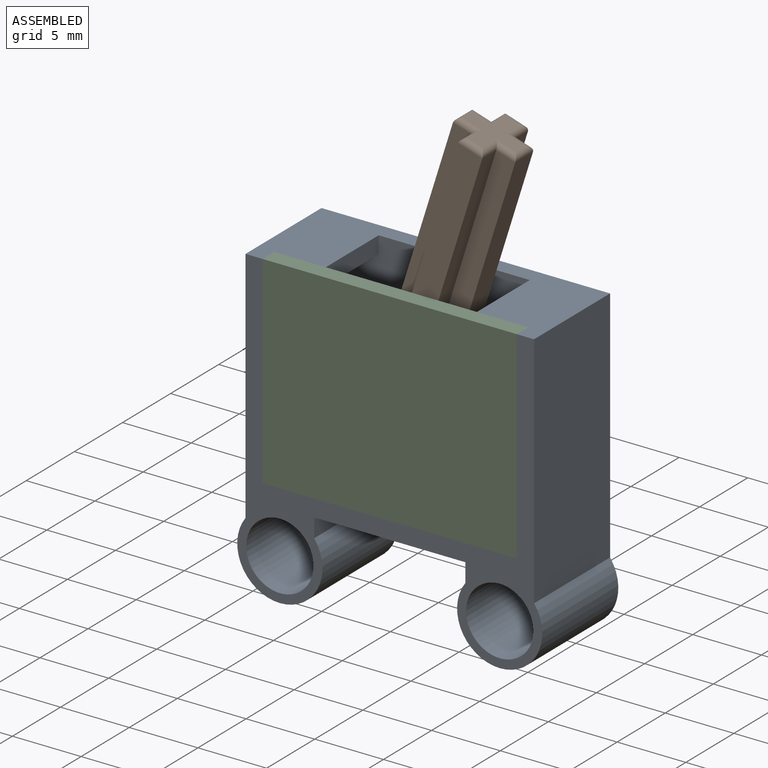
[diagram: assembled view]
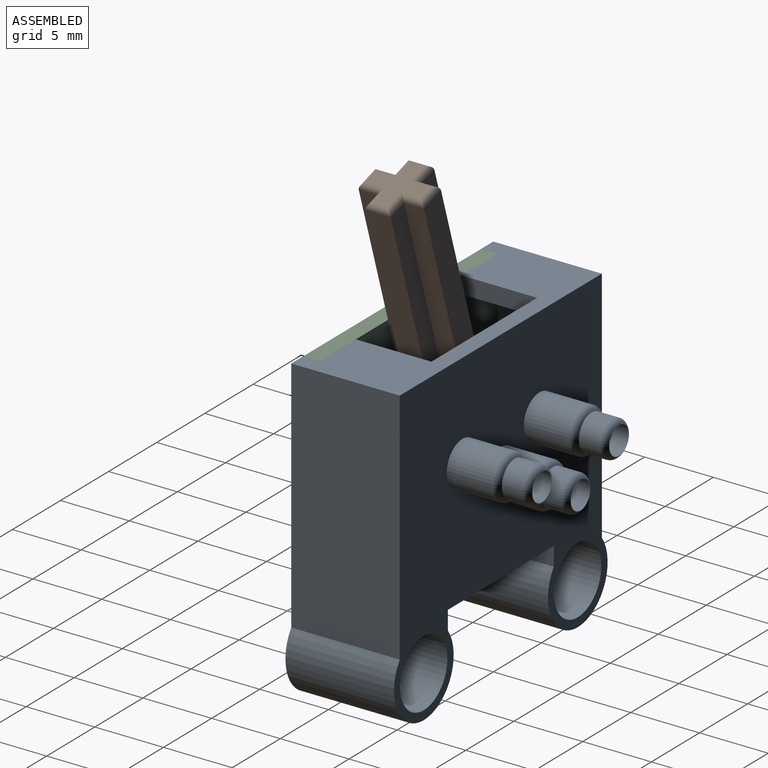
[diagram: assembled view, second angle]
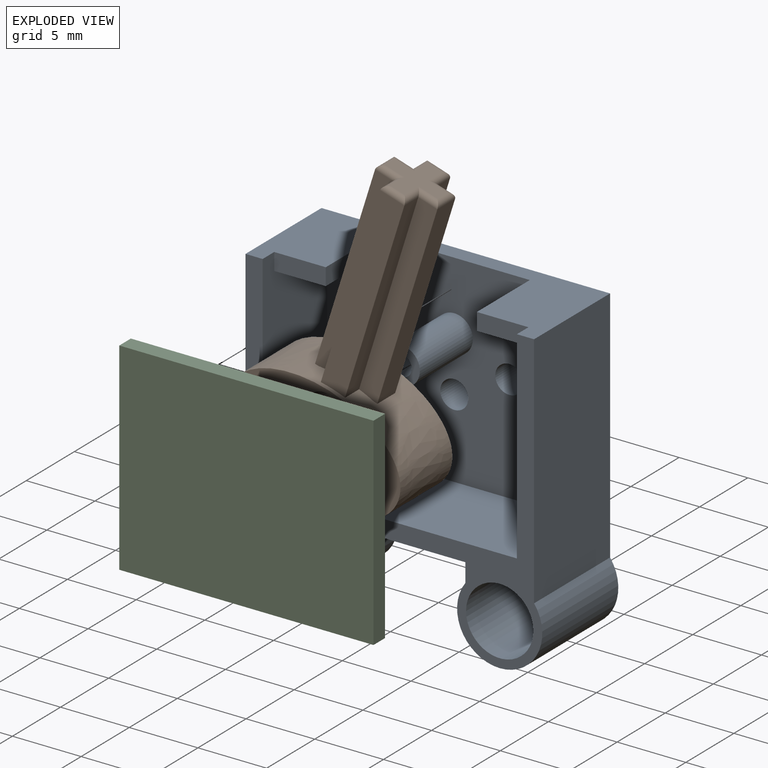
[diagram: exploded view]
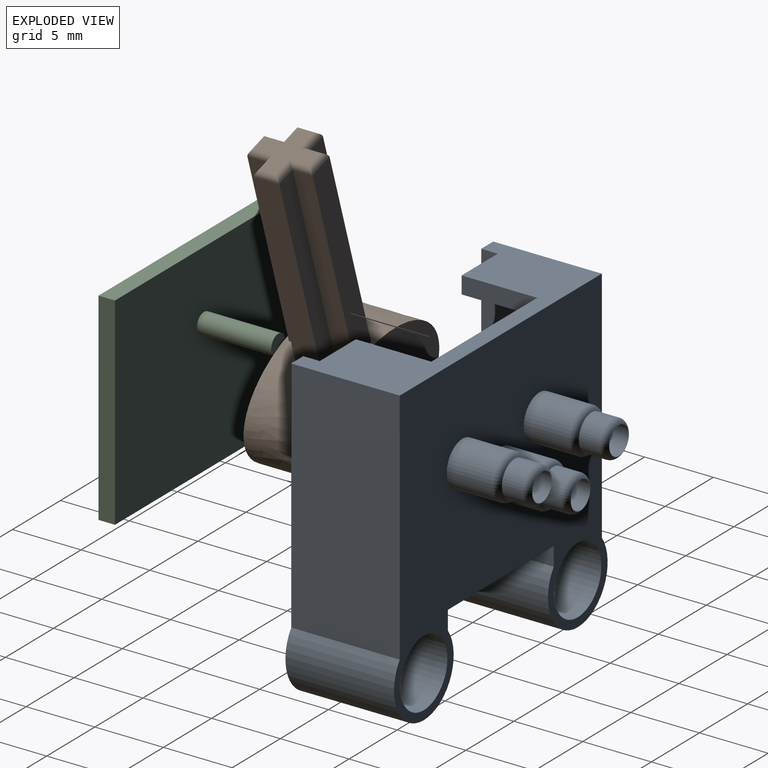
[diagram: exploded view, second angle]
ASSEMBLY  parts=3 mates=2
PART A: 41 faces, bbox 22.2x13.7x22.3 mm
  f0: plane 18.5x14.75mm, normal (0,-1,0), area 248.1mm2, adj f2,f8,f9,f13,f15,f16,f17,f19
  f1: plane 17.37x7.9mm, normal (1,0,0), area 137.2mm2, adj f2,f12,f14,f18
  f2: plane 21x7.9mm, normal (0,0,1), area 83.2mm2, adj f0,f1,f3,f14,f15,f16,f18,f20
  f3: plane 17.37x7.9mm, normal (-1,0,0), area 137.2mm2, adj f2,f4,f14,f18
  f4: cylinder r=3.1mm len=7.9mm, axis (0,-1,0), area 107.9mm2, adj f3,f5,f14,f18
  f5: plane 7.9x1.37mm, normal (1,0,0), area 10.8mm2, adj f4,f6,f14,f18
  f6: plane 11x7.9mm, normal (0,0,-1), area 86.9mm2, adj f5,f7,f14,f18
  f7: plane 7.9x1.37mm, normal (-1,0,0), area 10.8mm2, adj f6,f12,f14,f18
  f8: cylinder r=1.02mm len=7mm, axis (0,-1,0), area 44.6mm2, adj f0,f39
  f9: cylinder r=1.02mm len=7mm, axis (0,-1,0), area 44.6mm2, adj f0,f38
  f10: cylinder r=2.45mm len=7.9mm, axis (0,-1,0), area 121.6mm2, adj f14,f18
  f11: cylinder r=2.45mm len=7.9mm, axis (0,-1,0), area 121.6mm2, adj f14,f18
  f12: cylinder r=3.1mm len=7.9mm, axis (0,-1,0), area 107.9mm2, adj f1,f7,f14,f18
  f13: cylinder r=1.02mm len=7mm, axis (0,-1,0), area 44.6mm2, adj f0,f40
  f14: plane 22.3x22.2mm, normal (0,1,0), area 338.9mm2, adj f1,f2,f3,f4,f5,f6,f7,f10
  f15: plane 14.75x6.7mm, normal (1,0,0), area 91.9mm2, adj f0,f2,f17,f18,f19,f21
  f16: plane 14.75x6.7mm, normal (-1,0,0), area 92mm2, adj f0,f2,f17,f18,f22,f24
  f17: plane 18.5x6.7mm, normal (0,0,1), area 123.9mm2, adj f0,f15,f16,f18
  f18: plane 22.3x22.2mm, normal (0,-1,0), area 90.6mm2, adj f1,f2,f3,f4,f5,f6,f7,f10
  f19: plane 5.5x3.75mm, normal (0,0,-1), area 20.6mm2, adj f0,f15,f20,f21
  f20: plane 5.5x1.25mm, normal (1,0,0), area 6.9mm2, adj f0,f2,f19,f21
  f21: plane 3.75x1.25mm, normal (0,-1,0), area 4.7mm2, adj f2,f15,f19,f20
  f22: plane 5.5x3.75mm, normal (0,0,-1), area 20.6mm2, adj f0,f16,f23,f24
  f23: plane 5.5x1.25mm, normal (-1,0,0), area 6.9mm2, adj f0,f2,f22,f24
  f24: plane 3.75x1.25mm, normal (0,-1,0), area 4.7mm2, adj f2,f16,f22,f23
  f25: cylinder r=0.75mm len=5.5mm, axis (0,1,0), area 25.9mm2, adj f27,f28
  f26: cylinder r=1.35mm len=5.5mm, axis (0,1,0), area 46.7mm2, adj f0,f27
  f27: plane 2.7x2.7mm, normal (0,-1,0), area 4mm2, adj f25,f26
  f28: plane 1.5x1.5mm, normal (0,-1,0), area 1.8mm2, adj f25
  f29: cylinder r=1.61mm len=3.34mm, axis (0,-1,0), area 33.9mm2, adj f14,f36
  f30: cylinder r=1.61mm len=3.34mm, axis (0,-1,0), area 33.9mm2, adj f14,f37
  f31: cylinder r=1.61mm len=3.34mm, axis (0,-1,0), area 33.9mm2, adj f14,f35
  f32: cylinder r=1.31mm len=2.63mm, axis (0,-1,0), area 12.7mm2, adj f37,f40
  f33: cylinder r=1.31mm len=2.63mm, axis (0,-1,0), area 12.7mm2, adj f36,f39
  f34: cylinder r=1.31mm len=2.63mm, axis (0,-1,0), area 12.7mm2, adj f35,f38
  f35: torus R=1.12mm, axis (0,1,0), area 5.5mm2, adj f31,f34
  f36: torus R=1.12mm, axis (0,1,0), area 5.5mm2, adj f29,f33
  f37: torus R=1.12mm, axis (0,1,0), area 5.5mm2, adj f30,f32
  f38: torus R=0.81mm, axis (0,1,0), area 4.4mm2, adj f9,f34
  f39: torus R=0.81mm, axis (0,1,0), area 4.4mm2, adj f8,f33
  f40: torus R=0.81mm, axis (0,1,0), area 4.4mm2, adj f13,f32
PART B: 31 faces, bbox 13x5.4x22.8 mm
  f0: cylinder r=1.35mm len=5.4mm, axis (0,1,0), area 45.8mm2, adj f2,f3
  f1: extruded ~13x8mm, area 167.5mm2, adj f2,f3,f4,f5,f6,f7,f8,f9
  f2: plane 13x8mm, normal (0,-1,0), area 76mm2, adj f0,f1
  f3: plane 13x8mm, normal (0,1,0), area 76mm2, adj f0,f1
  f4: plane 14.43x1.45mm, normal (1,0,0), area 20.9mm2, adj f1,f10,f17,f27
  f5: plane 14.43x1.45mm, normal (-1,0,0), area 20.9mm2, adj f1,f10,f11,f23
  f6: plane 14.43x1.45mm, normal (-1,0,0), area 20.9mm2, adj f1,f13,f14,f22
  f7: plane 14.43x1.45mm, normal (1,0,0), area 20.9mm2, adj f1,f14,f15,f26
  f8: plane 1.85x0.27mm, normal (0,0,-1), area 0.5mm2, adj f1,f11,f12,f13
  f9: plane 1.85x0.27mm, normal (0,0,-1), area 0.5mm2, adj f1,f15,f16,f17
  f10: plane 14.43x1.85mm, normal (0,1,0), area 26.6mm2, adj f1,f4,f5,f25
  f11: plane 14.6x1.45mm, normal (0,1,0), area 21.1mm2, adj f1,f5,f8,f12,f21
  f12: plane 14.6x1.85mm, normal (-1,0,0), area 27mm2, adj f8,f11,f13,f19
  f13: plane 14.6x1.45mm, normal (0,-1,0), area 21.1mm2, adj f1,f6,f8,f12,f20
  f14: plane 14.43x1.85mm, normal (0,-1,0), area 26.6mm2, adj f1,f6,f7,f24
  f15: plane 14.6x1.45mm, normal (0,-1,0), area 21.1mm2, adj f1,f7,f9,f16,f28
  f16: plane 14.6x1.85mm, normal (1,0,0), area 27mm2, adj f9,f15,f17,f30
  f17: plane 14.6x1.45mm, normal (0,1,0), area 21.1mm2, adj f1,f4,f9,f16,f29
  f18: plane 3.95x3.95mm, normal (0,0,1), area 7.2mm2, adj f19,f20,f21,f22,f23,f24,f25,f26
  f19: cylinder r=0.4mm len=1.85mm, axis (0,1,0), area 1mm2, adj f12,f18,f20,f21
  f20: cylinder r=0.4mm len=1.85mm, axis (-1,0,0), area 0.9mm2, adj f13,f18,f19,f22
  f21: cylinder r=0.4mm len=1.85mm, axis (1,0,0), area 0.9mm2, adj f11,f18,f19,f23
  f22: cylinder r=0.4mm len=1.85mm, axis (0,1,0), area 0.9mm2, adj f6,f18,f20,f24
  f23: cylinder r=0.4mm len=1.85mm, axis (0,1,0), area 0.9mm2, adj f5,f18,f21,f25
  f24: cylinder r=0.4mm len=1.85mm, axis (-1,0,0), area 1mm2, adj f14,f18,f22,f26
  f25: cylinder r=0.4mm len=1.85mm, axis (1,0,0), area 1mm2, adj f10,f18,f23,f27
  f26: cylinder r=0.4mm len=1.85mm, axis (0,-1,0), area 0.9mm2, adj f7,f18,f24,f28
  f27: cylinder r=0.4mm len=1.85mm, axis (0,-1,0), area 0.9mm2, adj f4,f18,f25,f29
  f28: cylinder r=0.4mm len=1.85mm, axis (-1,0,0), area 0.9mm2, adj f15,f18,f26,f30
  f29: cylinder r=0.4mm len=1.85mm, axis (1,0,0), area 0.9mm2, adj f17,f18,f27,f30
  f30: cylinder r=0.4mm len=1.85mm, axis (0,-1,0), area 1mm2, adj f16,f18,f28,f29
PART C: 8 faces, bbox 18.5x6.6x14.8 mm
  f0: plane 14.75x1.2mm, normal (-1,0,0), area 17.7mm2, adj f1,f3,f4,f5
  f1: plane 18.5x1.2mm, normal (0,0,-1), area 22.2mm2, adj f0,f2,f4,f5
  f2: plane 14.75x1.2mm, normal (1,0,0), area 17.7mm2, adj f1,f3,f4,f5
  f3: plane 18.5x1.2mm, normal (0,0,1), area 22.2mm2, adj f0,f2,f4,f5
  f4: plane 18.5x14.75mm, normal (0,-1,0), area 272.9mm2, adj f0,f1,f2,f3
  f5: plane 18.5x14.75mm, normal (0,1,0), area 271.2mm2, adj f0,f1,f2,f3,f6
  f6: cylinder r=0.72mm len=5.4mm, axis (0,-1,0), area 24.6mm2, adj f5,f7
  f7: plane 1.45x1.45mm, normal (0,1,0), area 1.7mm2, adj f6
PLACE A rot(axis=(-0.11,-0.99,-0.09),0deg) t=(6.08,-4.9,0.67)mm
PLACE B rot(axis=(0,1,0),17.4deg) t=(6.08,-5,0.67)mm
PLACE C rot(axis=(-0.11,-0.99,-0.09),0deg) t=(6.08,-4.9,0.67)mm
MATE revolute B.f0 <-> A.f25  axis (0,1,0) through (6.08,-10.4,0.67)mm
MATE fastened A.f21 <-> C.f5  axis (0,-1,0) through (-3.17,-10.4,5.67)mm
